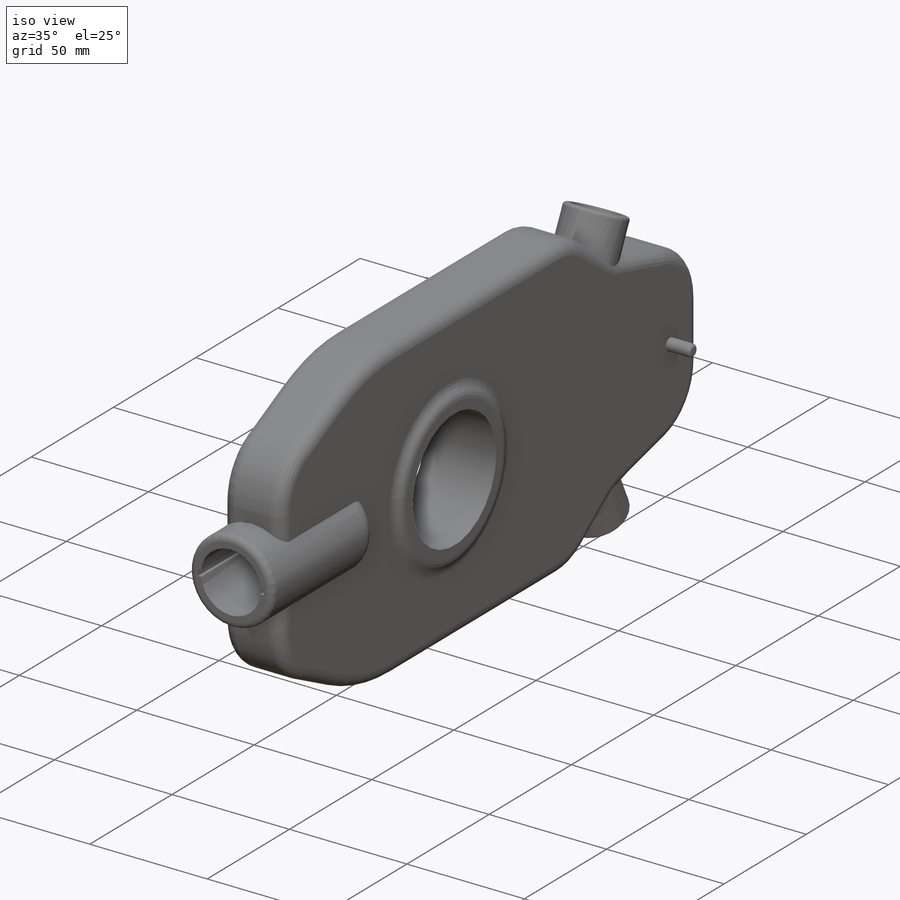
[diagram: iso view]
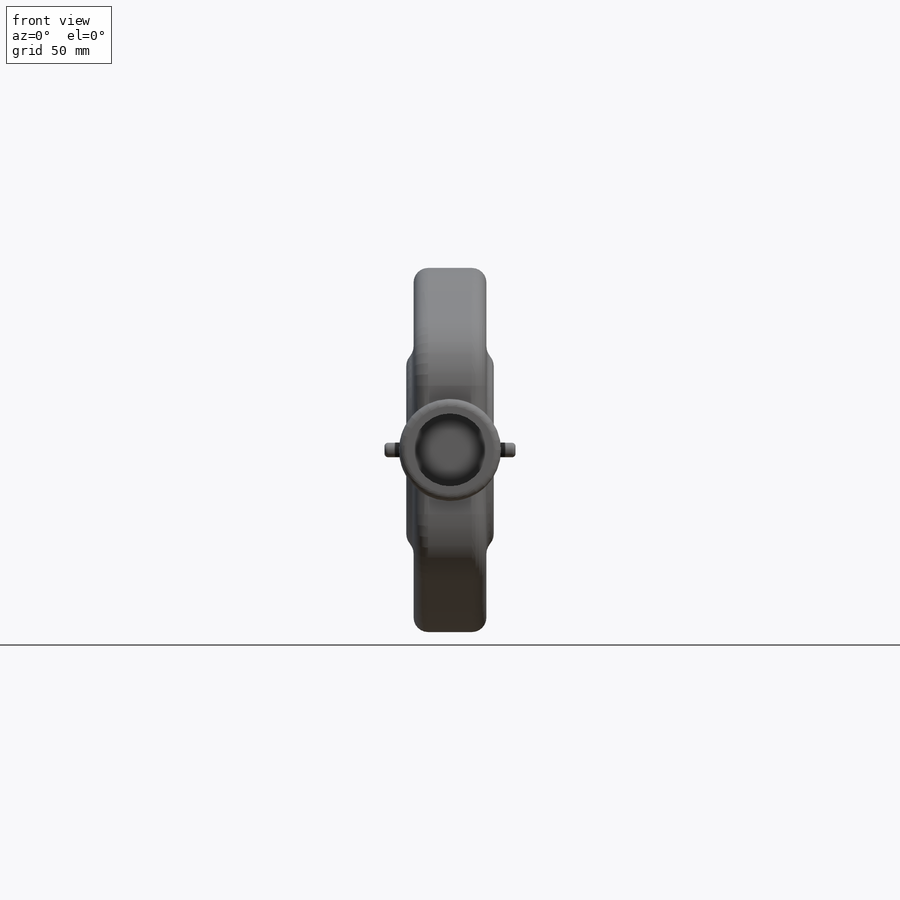
[diagram: front view]
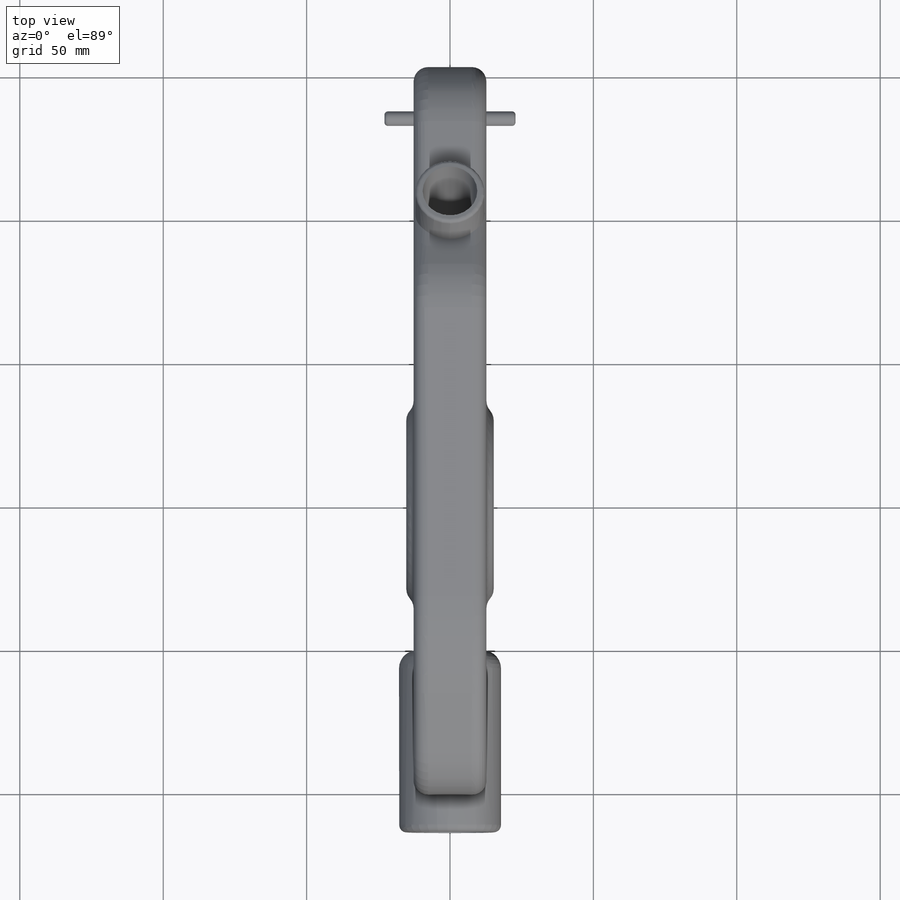
[diagram: top view]
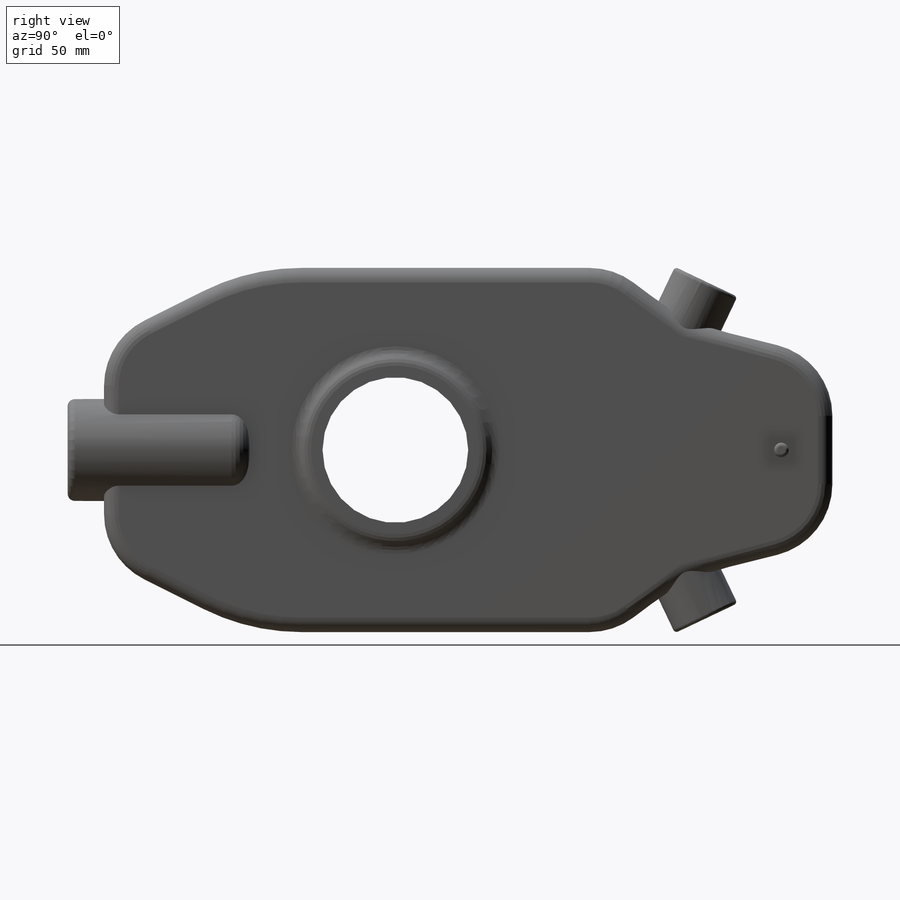
[diagram: right view]
SOLIDWORKS PART (.sldprt)
format: sldprt  version: not decoded by parser v0  size: 689,152 bytes
history: native  units: mm
features: sketch x9, fillet x8, extrude x5, cut_extrude x3, mirror x2, material x1, plane x1 (+13 scaffold rows collapsed)
feature tree (42):
  scaffold x13  (default folders/planes/origin — collapsed)
  material  "Material <not specified>"
  sketch  "Sketch2"  dims[D1=50.8mm D2=63.5mm]
  extrude  "Boss-Extrude1"  Depth=30.48mm
  sketch  "Sketch3"  dims[D1=254.0mm D2=101.6mm D3=63.5mm D4=38.1mm D5=50.8mm D6=127.0mm D7=25.4mm D8=19.05mm D9=31.75mm]
  extrude  "Boss-Extrude2"  Depth=25.4mm
  fillet  "Fillet1"  Radius=5.08mm
  fillet  "Fillet2"  Radius=25.4mm
  fillet  "Fillet3"  Radius=76.2mm
  fillet  "Fillet4"  Radius=5.08mm
  sketch  "Sketch4"  dims[D1=35.56mm]
  extrude  "Boss-Extrude3"  Depth=12.7mm
  fillet  "Fillet5"  Radius=6.35mm
  fillet  "Fillet6"  Radius=2.54mm
  sketch  "Sketch5"  dims[D1=25.4mm]
  cut_extrude  "Cut-Extrude1"  Depth=50.8mm
  plane  "Plane1"
  sketch  "Sketch6"  dims[D1=24.13mm]
  extrude  "Boss-Extrude4"  Depth=12.7mm
  mirror  "Mirror1"
  fillet  "Fillet7"  Radius=1.27mm
  sketch  "Sketch7"  dims[D1=19.05mm]
  cut_extrude  "Cut-Extrude2"  Depth=50.8mm
  mirror  "Mirror2"
  sketch  "Sketch8"  dims[D1=2.54mm D2=27.94mm]
  cut_extrude  "Cut-Extrude3"  [1 undecoded]
  sketch  "Sketch9"
  sketch  "Sketch10"  dims[D1=5.08mm D2=12.7mm]
  extrude  "Boss-Extrude5"  Depth=10.16mm
  fillet  "Fillet8"  Radius=1.27mm
decode coverage: 23 of 27 modeling features carry decoded parameters
note: 1 parameter value undecoded
note: suppression state not decoded; provenance and decode notes live in map.json
